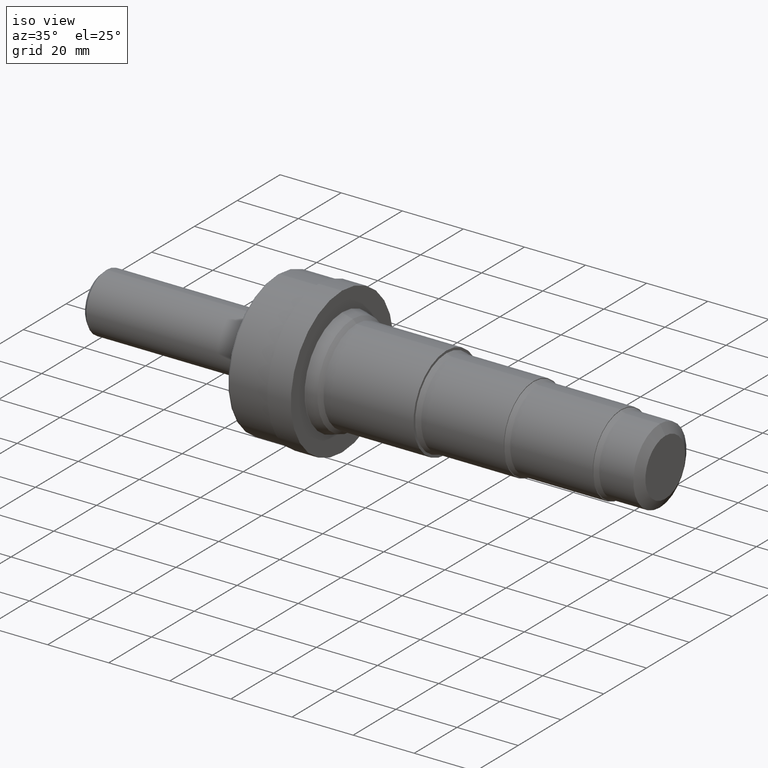
[diagram: clean part render]
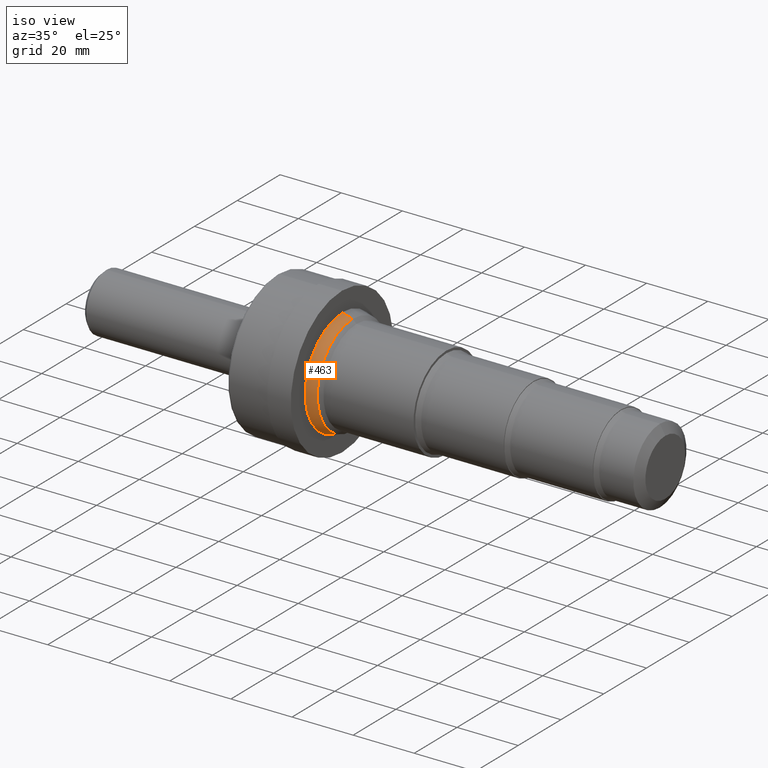
[diagram: same view with one face highlighted and labeled with its STEP entity id]
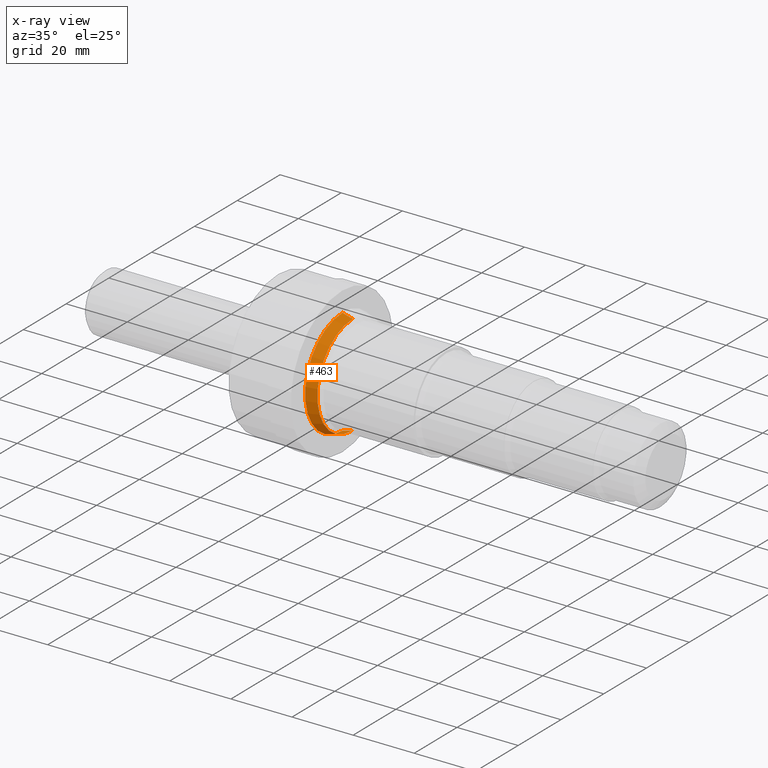
[diagram: x-ray of the same camera — body ghosted, the highlighted face saturated]
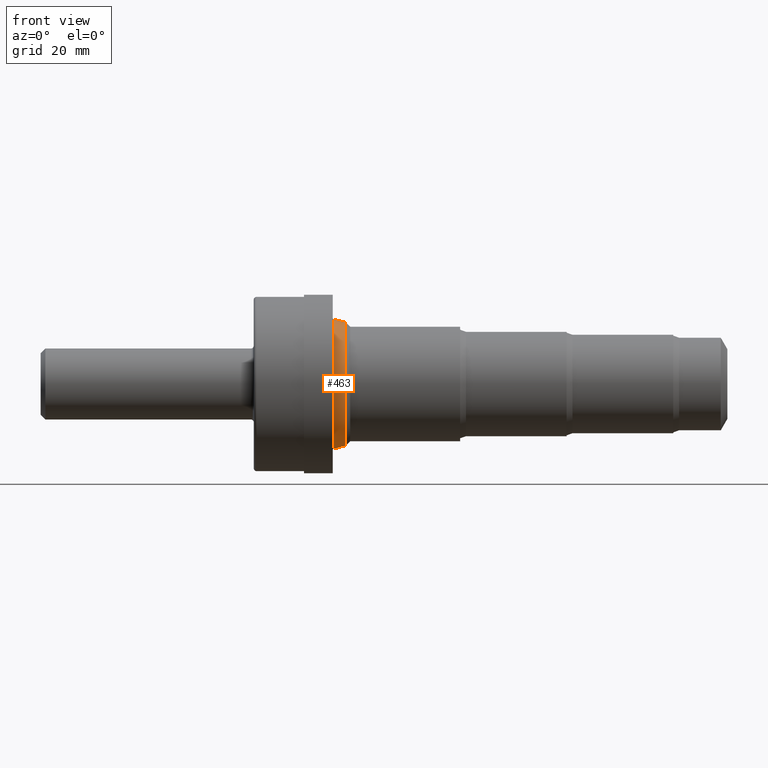
[diagram: same view with one face highlighted and labeled with its STEP entity id]
A machine part, iso view. The second image highlights one B-rep face of the part: STEP entity #463.
The next image is the same camera in x-ray: the body ghosted, the highlighted face saturated — about 0% of this face is hidden behind the body in this view.
A second angle (front view) of the same face is appended — the face is thin or edge-on in the first view.
In plain terms, the highlighted conical surface has half-angle 15 deg.
Its self-contained STEP definition (entity closure, byte-faithful):
#31 = CARTESIAN_POINT ( 'NONE',  ( 3.222000000000000419, 0.0000000000000000000, 0.0000000000000000000 ) ) ;
#143 = CARTESIAN_POINT ( 'NONE',  ( 3.089929447639180093, 0.0000000000000000000, 0.0000000000000000000 ) ) ;
#144 = ORIENTED_EDGE ( 'NONE', *, *, #1125, .F. ) ;
#220 = DIRECTION ( 'NONE',  ( -1.000000000000000000, -0.0000000000000000000, -0.0000000000000000000 ) ) ;
#258 = LINE ( 'NONE', #648, #944 ) ;
#262 = VERTEX_POINT ( 'NONE', #1115 ) ;
#296 = AXIS2_PLACEMENT_3D ( 'NONE', #481, #741, #1048 ) ;
#298 = ORIENTED_EDGE ( 'NONE', *, *, #537, .T. ) ;
#307 = DIRECTION ( 'NONE',  ( -1.000000000000000000, -0.0000000000000000000, -0.0000000000000000000 ) ) ;
#318 = ORIENTED_EDGE ( 'NONE', *, *, #900, .F. ) ;
#326 = CARTESIAN_POINT ( 'NONE',  ( 3.222000000000000419, 0.0000000000000000000, 0.6507730114445051672 ) ) ;
#362 = LINE ( 'NONE', #581, #786 ) ;
#401 = CARTESIAN_POINT ( 'NONE',  ( 3.089929447639180093, 8.403051286603848645E-17, -0.6861612092935188700 ) ) ;
#409 = EDGE_LOOP ( 'NONE', ( #144, #729, #298, #318 ) ) ;
#433 = EDGE_CURVE ( 'NONE', #775, #434, #723, .T. ) ;
#434 = VERTEX_POINT ( 'NONE', #326 ) ;
#438 = VERTEX_POINT ( 'NONE', #401 ) ;
#463 = ADVANCED_FACE ( 'NONE', ( #523 ), #887, .T. ) ;
#481 = CARTESIAN_POINT ( 'NONE',  ( 3.222000000000000419, 0.0000000000000000000, 0.0000000000000000000 ) ) ;
#498 = DIRECTION ( 'NONE',  ( 0.0000000000000000000, 0.0000000000000000000, 1.000000000000000000 ) ) ;
#523 = FACE_OUTER_BOUND ( 'NONE', #409, .T. ) ;
#537 = EDGE_CURVE ( 'NONE', #434, #262, #362, .T. ) ;
#572 = DIRECTION ( 'NONE',  ( -0.9659258262890689783, 0.0000000000000000000, 0.2588190451025183525 ) ) ;
#581 = CARTESIAN_POINT ( 'NONE',  ( 3.222000000000000419, 0.0000000000000000000, 0.6507730114445051672 ) ) ;
#630 = DIRECTION ( 'NONE',  ( -0.9659258262890689783, 3.169619151431735359E-17, -0.2588190451025183525 ) ) ;
#636 = CIRCLE ( 'NONE', #928, 0.6861612092935188700 ) ;
#648 = CARTESIAN_POINT ( 'NONE',  ( 3.222000000000000419, 7.969670854369970354E-17, -0.6507730114445051672 ) ) ;
#723 = CIRCLE ( 'NONE', #1069, 0.6507730114445051672 ) ;
#729 = ORIENTED_EDGE ( 'NONE', *, *, #433, .T. ) ;
#741 = DIRECTION ( 'NONE',  ( -1.000000000000000000, -0.0000000000000000000, -0.0000000000000000000 ) ) ;
#775 = VERTEX_POINT ( 'NONE', #952 ) ;
#786 = VECTOR ( 'NONE', #572, 39.37007874015748143 ) ;
#887 = CONICAL_SURFACE ( 'NONE', #296, 0.6507730114445051672, 0.2617993877991468543 ) ;
#900 = EDGE_CURVE ( 'NONE', #438, #262, #636, .T. ) ;
#923 = DIRECTION ( 'NONE',  ( 0.0000000000000000000, 0.0000000000000000000, 1.000000000000000000 ) ) ;
#928 = AXIS2_PLACEMENT_3D ( 'NONE', #143, #307, #498 ) ;
#944 = VECTOR ( 'NONE', #630, 39.37007874015748143 ) ;
#952 = CARTESIAN_POINT ( 'NONE',  ( 3.222000000000000419, 7.969670854369970354E-17, -0.6507730114445051672 ) ) ;
#1048 = DIRECTION ( 'NONE',  ( 0.0000000000000000000, 0.0000000000000000000, 1.000000000000000000 ) ) ;
#1069 = AXIS2_PLACEMENT_3D ( 'NONE', #31, #220, #923 ) ;
#1115 = CARTESIAN_POINT ( 'NONE',  ( 3.089929447639180093, 0.0000000000000000000, 0.6861612092935188700 ) ) ;
#1125 = EDGE_CURVE ( 'NONE', #775, #438, #258, .T. ) ;